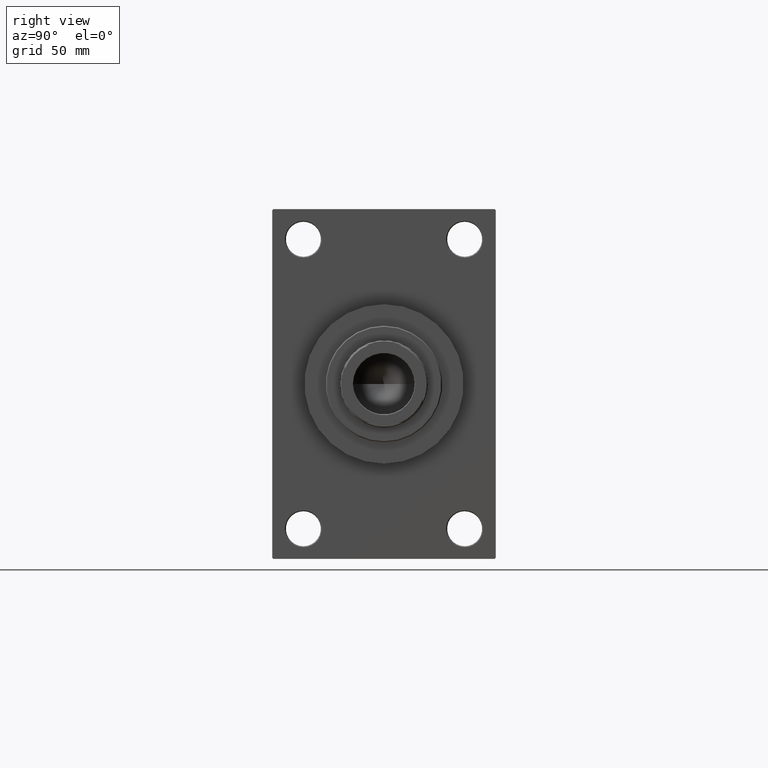
[diagram: clean part render]
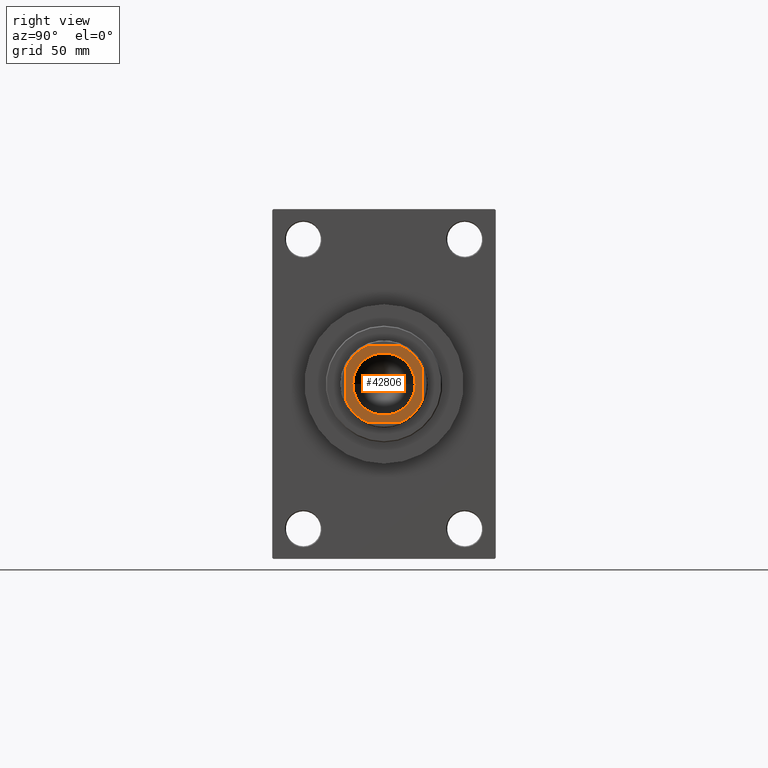
[diagram: same view with one face highlighted and labeled with its STEP entity id]
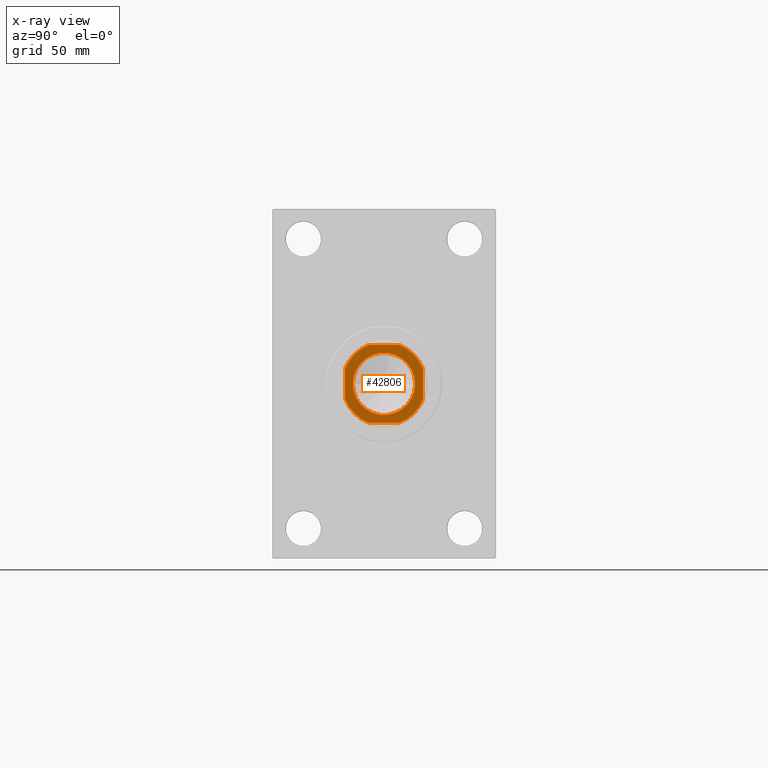
[diagram: x-ray of the same camera — body ghosted, the highlighted face saturated]
A machine part, right view. The second image highlights one B-rep face of the part: STEP entity #42806.
The next image is the same camera in x-ray: the body ghosted, the highlighted face saturated — about 0% of this face is hidden behind the body in this view.
In plain terms, the highlighted planar face has unit normal (1, 0, 0).
Its self-contained STEP definition (entity closure, byte-faithful):
#620 = DIRECTION ( 'NONE',  ( 1.000000000000000000, 0.000000000000000000, 0.000000000000000000 ) ) ;
#930 = ORIENTED_EDGE ( 'NONE', *, *, #21289, .T. ) ;
#1612 = CARTESIAN_POINT ( 'NONE',  ( 0.000000000000000000, 0.000000000000000000, 246.0000000000000000 ) ) ;
#1736 = DIRECTION ( 'NONE',  ( -8.673617379884035472E-17, 1.000000000000000000, -0.000000000000000000 ) ) ;
#2130 = ORIENTED_EDGE ( 'NONE', *, *, #42158, .T. ) ;
#2245 = EDGE_LOOP ( 'NONE', ( #44053, #930 ) ) ;
#2869 = ORIENTED_EDGE ( 'NONE', *, *, #5325, .T. ) ;
#3309 = LINE ( 'NONE', #18236, #27648 ) ;
#5113 = CARTESIAN_POINT ( 'NONE',  ( 20.00000000000000000, 7.889866919029594250, 246.0000000000000000 ) ) ;
#5250 = ORIENTED_EDGE ( 'NONE', *, *, #12562, .T. ) ;
#5322 = DIRECTION ( 'NONE',  ( 1.000000000000000000, 0.000000000000000000, 0.000000000000000000 ) ) ;
#5325 = EDGE_CURVE ( 'NONE', #27681, #11344, #19253, .T. ) ;
#5571 = CIRCLE ( 'NONE', #46343, 21.49999999999994316 ) ;
#5964 = DIRECTION ( 'NONE',  ( -1.000000000000000000, -0.000000000000000000, -0.000000000000000000 ) ) ;
#6585 = DIRECTION ( 'NONE',  ( 1.000000000000000000, 0.000000000000000000, 0.000000000000000000 ) ) ;
#6858 = EDGE_CURVE ( 'NONE', #25041, #43448, #9828, .T. ) ;
#7336 = DIRECTION ( 'NONE',  ( 1.000000000000000000, 0.000000000000000000, 0.000000000000000000 ) ) ;
#7762 = CARTESIAN_POINT ( 'NONE',  ( 16.05000000000000782, 0.000000000000000000, 246.0000000000000000 ) ) ;
#8231 = EDGE_CURVE ( 'NONE', #35922, #39764, #8972, .T. ) ;
#8972 = LINE ( 'NONE', #34756, #14769 ) ;
#9472 = CARTESIAN_POINT ( 'NONE',  ( 7.889866919029583592, 20.00000000000000355, 246.0000000000000000 ) ) ;
#9606 = CARTESIAN_POINT ( 'NONE',  ( 0.000000000000000000, 0.000000000000000000, 246.0000000000000000 ) ) ;
#9828 = LINE ( 'NONE', #38991, #11656 ) ;
#10039 = DIRECTION ( 'NONE',  ( 1.000000000000000000, 0.000000000000000000, 0.000000000000000000 ) ) ;
#10211 = CARTESIAN_POINT ( 'NONE',  ( 0.000000000000000000, 0.000000000000000000, 246.0000000000000000 ) ) ;
#10552 = CARTESIAN_POINT ( 'NONE',  ( 0.000000000000000000, 0.000000000000000000, 246.0000000000000000 ) ) ;
#11344 = VERTEX_POINT ( 'NONE', #33471 ) ;
#11656 = VECTOR ( 'NONE', #5964, 1000.000000000000000 ) ;
#12562 = EDGE_CURVE ( 'NONE', #42141, #35922, #5571, .T. ) ;
#13462 = DIRECTION ( 'NONE',  ( 1.000000000000000000, 0.000000000000000000, 0.000000000000000000 ) ) ;
#14214 = ORIENTED_EDGE ( 'NONE', *, *, #6858, .T. ) ;
#14367 = CARTESIAN_POINT ( 'NONE',  ( 0.000000000000000000, 0.000000000000000000, 246.0000000000000000 ) ) ;
#14769 = VECTOR ( 'NONE', #1736, 1000.000000000000000 ) ;
#14863 = EDGE_CURVE ( 'NONE', #43448, #32213, #39499, .T. ) ;
#15840 = DIRECTION ( 'NONE',  ( -0.000000000000000000, 0.000000000000000000, 1.000000000000000000 ) ) ;
#16108 = FACE_OUTER_BOUND ( 'NONE', #24549, .T. ) ;
#18236 = CARTESIAN_POINT ( 'NONE',  ( -20.00000000000000000, -19.99999999999999645, 246.0000000000000000 ) ) ;
#18757 = ORIENTED_EDGE ( 'NONE', *, *, #8231, .T. ) ;
#18804 = EDGE_CURVE ( 'NONE', #33878, #44228, #35102, .T. ) ;
#19253 = CIRCLE ( 'NONE', #32389, 21.49999999999998224 ) ;
#19616 = CARTESIAN_POINT ( 'NONE',  ( -20.00000000000000711, 20.00000000000000355, 246.0000000000000000 ) ) ;
#21162 = CARTESIAN_POINT ( 'NONE',  ( 7.889866919029603132, -19.99999999999999645, 246.0000000000000000 ) ) ;
#21250 = AXIS2_PLACEMENT_3D ( 'NONE', #14367, #46437, #10039 ) ;
#21289 = EDGE_CURVE ( 'NONE', #44228, #33878, #40592, .T. ) ;
#21635 = DIRECTION ( 'NONE',  ( 0.000000000000000000, -0.000000000000000000, -1.000000000000000000 ) ) ;
#24087 = AXIS2_PLACEMENT_3D ( 'NONE', #1612, #15840, #41864 ) ;
#24549 = EDGE_LOOP ( 'NONE', ( #18757, #38576, #14214, #27569, #33259, #2869, #2130, #5250 ) ) ;
#24916 = DIRECTION ( 'NONE',  ( -0.000000000000000000, 0.000000000000000000, 1.000000000000000000 ) ) ;
#25041 = VERTEX_POINT ( 'NONE', #9472 ) ;
#26418 = CARTESIAN_POINT ( 'NONE',  ( 0.000000000000000000, 0.000000000000000000, 246.0000000000000000 ) ) ;
#26620 = LINE ( 'NONE', #19616, #44078 ) ;
#27213 = FACE_BOUND ( 'NONE', #2245, .T. ) ;
#27569 = ORIENTED_EDGE ( 'NONE', *, *, #14863, .T. ) ;
#27648 = VECTOR ( 'NONE', #13462, 1000.000000000000000 ) ;
#27681 = VERTEX_POINT ( 'NONE', #40875 ) ;
#29057 = AXIS2_PLACEMENT_3D ( 'NONE', #10552, #21635, #5322 ) ;
#30737 = AXIS2_PLACEMENT_3D ( 'NONE', #9606, #38526, #41890 ) ;
#30816 = PLANE ( 'NONE',  #30737 ) ;
#32213 = VERTEX_POINT ( 'NONE', #32255 ) ;
#32255 = CARTESIAN_POINT ( 'NONE',  ( -20.00000000000000355, 7.889866919029580039, 246.0000000000000000 ) ) ;
#32389 = AXIS2_PLACEMENT_3D ( 'NONE', #34071, #33372, #7336 ) ;
#32910 = CARTESIAN_POINT ( 'NONE',  ( -16.05000000000000782, 1.965558112631502599E-15, 246.0000000000000000 ) ) ;
#33259 = ORIENTED_EDGE ( 'NONE', *, *, #33570, .T. ) ;
#33372 = DIRECTION ( 'NONE',  ( -0.000000000000000000, 0.000000000000000000, 1.000000000000000000 ) ) ;
#33471 = CARTESIAN_POINT ( 'NONE',  ( -7.889866919029707049, -19.99999999999999645, 246.0000000000000000 ) ) ;
#33570 = EDGE_CURVE ( 'NONE', #32213, #27681, #26620, .T. ) ;
#33750 = AXIS2_PLACEMENT_3D ( 'NONE', #26418, #37730, #620 ) ;
#33878 = VERTEX_POINT ( 'NONE', #7762 ) ;
#34071 = CARTESIAN_POINT ( 'NONE',  ( 0.000000000000000000, 0.000000000000000000, 246.0000000000000000 ) ) ;
#34309 = DIRECTION ( 'NONE',  ( 1.734723475976807094E-16, -1.000000000000000000, 0.000000000000000000 ) ) ;
#34756 = CARTESIAN_POINT ( 'NONE',  ( 19.99999999999999645, 20.00000000000000355, 246.0000000000000000 ) ) ;
#35102 = CIRCLE ( 'NONE', #21250, 16.05000000000000782 ) ;
#35922 = VERTEX_POINT ( 'NONE', #37336 ) ;
#37336 = CARTESIAN_POINT ( 'NONE',  ( 20.00000000000000000, -7.889866919029590697, 246.0000000000000000 ) ) ;
#37730 = DIRECTION ( 'NONE',  ( -0.000000000000000000, 0.000000000000000000, 1.000000000000000000 ) ) ;
#38526 = DIRECTION ( 'NONE',  ( -0.000000000000000000, 0.000000000000000000, 1.000000000000000000 ) ) ;
#38576 = ORIENTED_EDGE ( 'NONE', *, *, #40892, .T. ) ;
#38991 = CARTESIAN_POINT ( 'NONE',  ( -20.00000000000000711, 20.00000000000000355, 246.0000000000000000 ) ) ;
#39499 = CIRCLE ( 'NONE', #24087, 21.49999999999994316 ) ;
#39764 = VERTEX_POINT ( 'NONE', #5113 ) ;
#39838 = CARTESIAN_POINT ( 'NONE',  ( -7.889866919029583592, 20.00000000000000355, 246.0000000000000000 ) ) ;
#40592 = CIRCLE ( 'NONE', #29057, 16.05000000000000782 ) ;
#40875 = CARTESIAN_POINT ( 'NONE',  ( -20.00000000000000355, -7.889866919029690173, 246.0000000000000000 ) ) ;
#40892 = EDGE_CURVE ( 'NONE', #39764, #25041, #42218, .T. ) ;
#41864 = DIRECTION ( 'NONE',  ( 1.000000000000000000, 0.000000000000000000, 0.000000000000000000 ) ) ;
#41890 = DIRECTION ( 'NONE',  ( 1.000000000000000000, 0.000000000000000000, 0.000000000000000000 ) ) ;
#42141 = VERTEX_POINT ( 'NONE', #21162 ) ;
#42158 = EDGE_CURVE ( 'NONE', #11344, #42141, #3309, .T. ) ;
#42218 = CIRCLE ( 'NONE', #33750, 21.49999999999994316 ) ;
#42806 = ADVANCED_FACE ( 'NONE', ( #27213, #16108 ), #30816, .T. ) ;
#43448 = VERTEX_POINT ( 'NONE', #39838 ) ;
#44053 = ORIENTED_EDGE ( 'NONE', *, *, #18804, .T. ) ;
#44078 = VECTOR ( 'NONE', #34309, 1000.000000000000000 ) ;
#44228 = VERTEX_POINT ( 'NONE', #32910 ) ;
#46343 = AXIS2_PLACEMENT_3D ( 'NONE', #10211, #24916, #6585 ) ;
#46437 = DIRECTION ( 'NONE',  ( 0.000000000000000000, -0.000000000000000000, -1.000000000000000000 ) ) ;